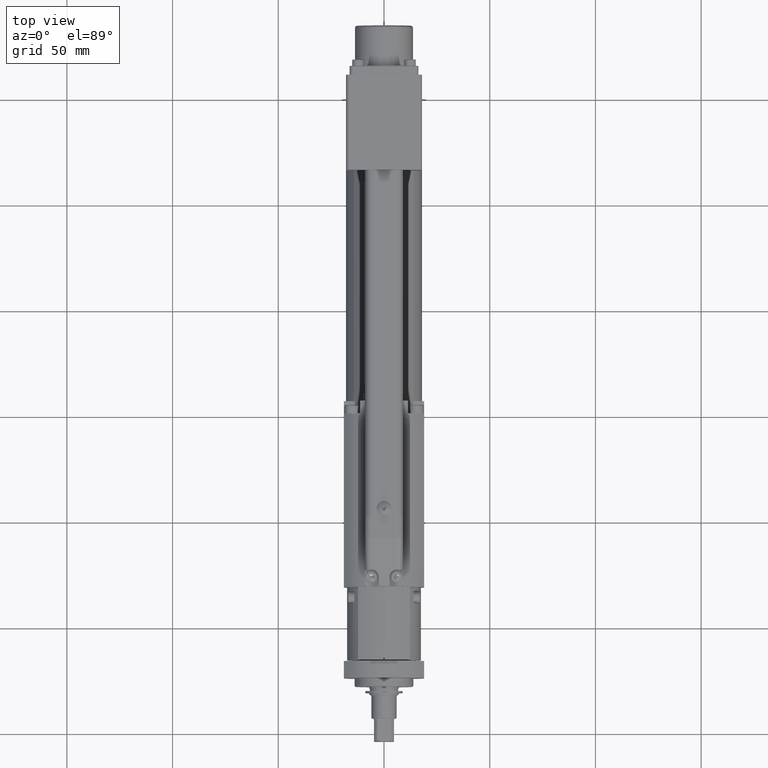
[diagram: clean part render]
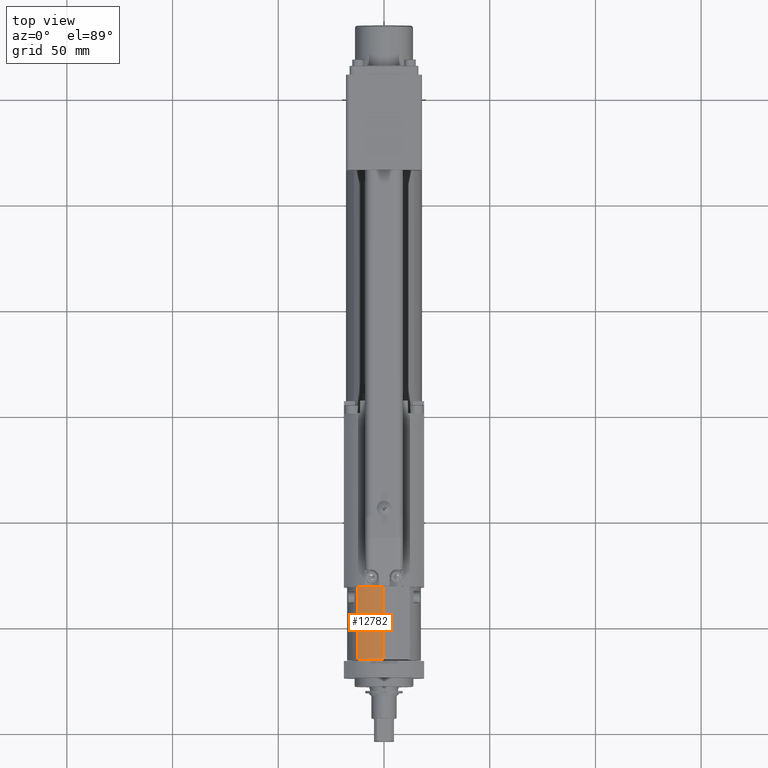
[diagram: same view with one face highlighted and labeled with its STEP entity id]
A machine part, top view. The second image highlights one B-rep face of the part: STEP entity #12782.
In plain terms, the highlighted cylindrical surface (partial cylindrical patch) has radius 27.7436 mm, axis along (0, 1, -0).
Its self-contained STEP definition (entity closure, byte-faithful):
#436=CYLINDRICAL_SURFACE('',#14002,27.7435652368372);
#1176=FACE_OUTER_BOUND('',#1951,.T.);
#1951=EDGE_LOOP('',(#10677,#10678,#10679,#10680));
#2520=CIRCLE('',#13987,27.7435652368372);
#2529=CIRCLE('',#14003,27.7435652368372);
#2769=LINE('',#18610,#3825);
#3530=LINE('',#22119,#4586);
#3825=VECTOR('',#14745,10.);
#4586=VECTOR('',#17344,10.);
#4980=VERTEX_POINT('',#18607);
#4981=VERTEX_POINT('',#18609);
#5693=VERTEX_POINT('',#22035);
#5710=VERTEX_POINT('',#22118);
#6174=EDGE_CURVE('',#4981,#4980,#2769,.T.);
#7377=EDGE_CURVE('',#4981,#5693,#2520,.T.);
#7401=EDGE_CURVE('',#5693,#5710,#3530,.T.);
#7402=EDGE_CURVE('',#5710,#4980,#2529,.T.);
#10677=ORIENTED_EDGE('',*,*,#7401,.F.);
#10678=ORIENTED_EDGE('',*,*,#7377,.F.);
#10679=ORIENTED_EDGE('',*,*,#6174,.T.);
#10680=ORIENTED_EDGE('',*,*,#7402,.F.);
#12782=ADVANCED_FACE('',(#1176),#436,.T.);
#13987=AXIS2_PLACEMENT_3D('',#22036,#17299,#17300);
#14002=AXIS2_PLACEMENT_3D('',#22117,#17342,#17343);
#14003=AXIS2_PLACEMENT_3D('',#22120,#17345,#17346);
#14745=DIRECTION('',(2.39155854213811E-16,1.,-4.16333634234434E-16));
#17299=DIRECTION('center_axis',(-2.39155854213811E-16,-1.,4.16333634234434E-16));
#17300=DIRECTION('ref_axis',(-0.443346047813221,-2.67152073075628E-16,-0.896350535163781));
#17342=DIRECTION('center_axis',(2.39155854213811E-16,1.,-4.16333634234434E-16));
#17343=DIRECTION('ref_axis',(-0.443346047813221,-2.67152073075628E-16,-0.896350535163781));
#17344=DIRECTION('',(2.39155854213811E-16,1.,-4.16333634234434E-16));
#17345=DIRECTION('center_axis',(2.39155854213811E-16,1.,-4.16333634234434E-16));
#17346=DIRECTION('ref_axis',(-0.443346047813221,-2.67152073075628E-16,-0.896350535163781));
#18607=CARTESIAN_POINT('',(-0.299999999999888,-31.,27.7419431916844));
#18609=CARTESIAN_POINT('',(-0.299999999999896,-65.5,27.7419431916844));
#18610=CARTESIAN_POINT('',(-0.299999999999896,-65.5,27.7419431916844));
#22035=CARTESIAN_POINT('',(-12.3,-65.5,24.8679595473904));
#22036=CARTESIAN_POINT('Origin',(7.29913392843472E-15,-65.5,4.21190859967169E-14));
#22117=CARTESIAN_POINT('Origin',(7.29913392843472E-15,-65.5,4.21190859967169E-14));
#22118=CARTESIAN_POINT('',(-12.3,-31.,24.8679595473904));
#22119=CARTESIAN_POINT('',(-12.3,-65.5,24.8679595473904));
#22120=CARTESIAN_POINT('Origin',(1.55500108988112E-14,-31.,2.77555756156289E-14));